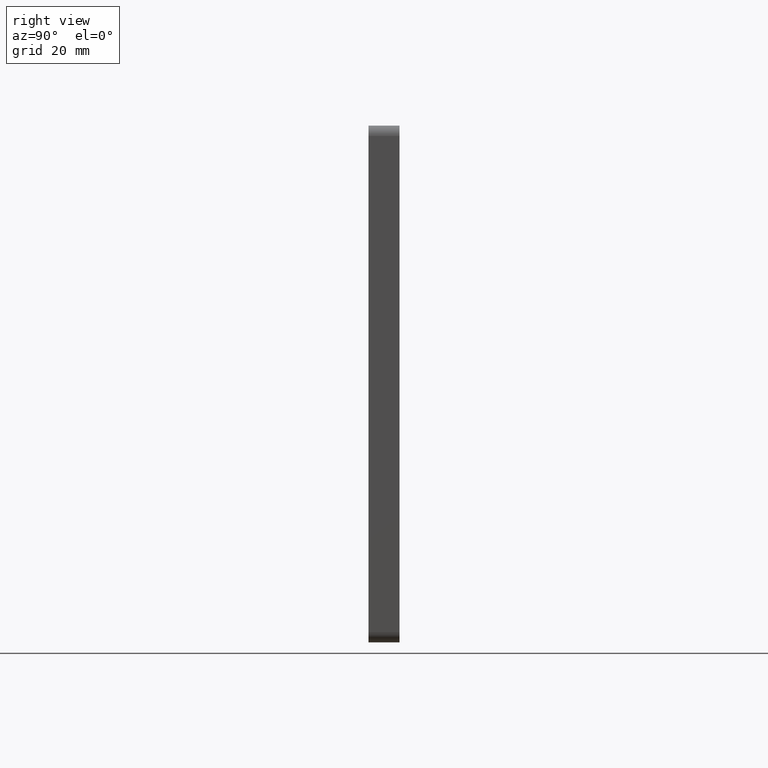
[diagram: clean part render]
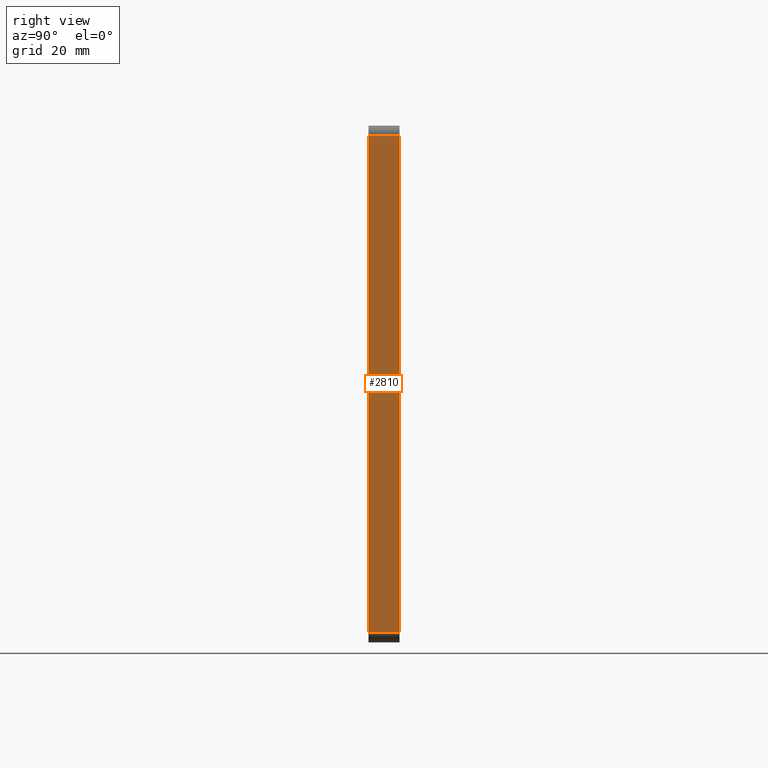
[diagram: same view with one face highlighted and labeled with its STEP entity id]
A machine part, right view. The second image highlights one B-rep face of the part: STEP entity #2810.
In plain terms, the highlighted planar face has unit normal (-1, 0, 0).
Its self-contained STEP definition (entity closure, byte-faithful):
#42 = VECTOR ( 'NONE', #13072, 1000.000000000000000 ) ;
#355 = EDGE_CURVE ( 'NONE', #9237, #2529, #4600, .T. ) ;
#702 = CARTESIAN_POINT ( 'NONE',  ( 49.99999999999998579, 0.000000000000000000, -49.99999999999999289 ) ) ;
#765 = CARTESIAN_POINT ( 'NONE',  ( 49.99999999999998579, 6.000000000000000000, -49.99999999999999289 ) ) ;
#846 = EDGE_CURVE ( 'NONE', #9237, #5856, #10774, .T. ) ;
#1143 = ORIENTED_EDGE ( 'NONE', *, *, #355, .T. ) ;
#1869 = DIRECTION ( 'NONE',  ( -2.775557561562891351E-16, -0.000000000000000000, -1.000000000000000000 ) ) ;
#1982 = DIRECTION ( 'NONE',  ( -0.000000000000000000, 1.000000000000000000, -0.000000000000000000 ) ) ;
#2112 = ORIENTED_EDGE ( 'NONE', *, *, #11738, .T. ) ;
#2529 = VERTEX_POINT ( 'NONE', #5660 ) ;
#2735 = EDGE_LOOP ( 'NONE', ( #4626, #2112, #12689, #1143 ) ) ;
#2810 = ADVANCED_FACE ( 'NONE', ( #3490 ), #2861, .F. ) ;
#2861 = PLANE ( 'NONE',  #11709 ) ;
#3194 = VERTEX_POINT ( 'NONE', #4677 ) ;
#3490 = FACE_OUTER_BOUND ( 'NONE', #2735, .T. ) ;
#3943 = VECTOR ( 'NONE', #1982, 1000.000000000000000 ) ;
#4489 = CARTESIAN_POINT ( 'NONE',  ( 49.99999999999998579, 6.000000000000000000, -49.99999999999999289 ) ) ;
#4600 = LINE ( 'NONE', #6079, #4940 ) ;
#4626 = ORIENTED_EDGE ( 'NONE', *, *, #13213, .T. ) ;
#4677 = CARTESIAN_POINT ( 'NONE',  ( 49.99999999999998579, 0.000000000000000000, -47.99999999999999289 ) ) ;
#4940 = VECTOR ( 'NONE', #7188, 1000.000000000000000 ) ;
#5660 = CARTESIAN_POINT ( 'NONE',  ( 50.00000000000001421, 0.000000000000000000, 48.00000000000000711 ) ) ;
#5856 = VERTEX_POINT ( 'NONE', #8668 ) ;
#6079 = CARTESIAN_POINT ( 'NONE',  ( 50.00000000000001421, 6.000000000000000000, 48.00000000000000711 ) ) ;
#6866 = LINE ( 'NONE', #10258, #3943 ) ;
#7188 = DIRECTION ( 'NONE',  ( 0.000000000000000000, -1.000000000000000000, 0.000000000000000000 ) ) ;
#8517 = DIRECTION ( 'NONE',  ( 2.775557561562890858E-16, 0.000000000000000000, 1.000000000000000000 ) ) ;
#8668 = CARTESIAN_POINT ( 'NONE',  ( 49.99999999999998579, 6.000000000000000000, -47.99999999999999289 ) ) ;
#9237 = VERTEX_POINT ( 'NONE', #10440 ) ;
#10258 = CARTESIAN_POINT ( 'NONE',  ( 49.99999999999998579, 6.000000000000000000, -47.99999999999999289 ) ) ;
#10440 = CARTESIAN_POINT ( 'NONE',  ( 50.00000000000001421, 6.000000000000000000, 48.00000000000000711 ) ) ;
#10588 = DIRECTION ( 'NONE',  ( -1.000000000000000000, 0.000000000000000000, 2.775557561562890858E-16 ) ) ;
#10774 = LINE ( 'NONE', #4489, #42 ) ;
#11709 = AXIS2_PLACEMENT_3D ( 'NONE', #765, #10588, #8517 ) ;
#11738 = EDGE_CURVE ( 'NONE', #3194, #5856, #6866, .T. ) ;
#12688 = LINE ( 'NONE', #702, #13387 ) ;
#12689 = ORIENTED_EDGE ( 'NONE', *, *, #846, .F. ) ;
#13072 = DIRECTION ( 'NONE',  ( -2.775557561562891351E-16, -0.000000000000000000, -1.000000000000000000 ) ) ;
#13213 = EDGE_CURVE ( 'NONE', #2529, #3194, #12688, .T. ) ;
#13387 = VECTOR ( 'NONE', #1869, 1000.000000000000000 ) ;